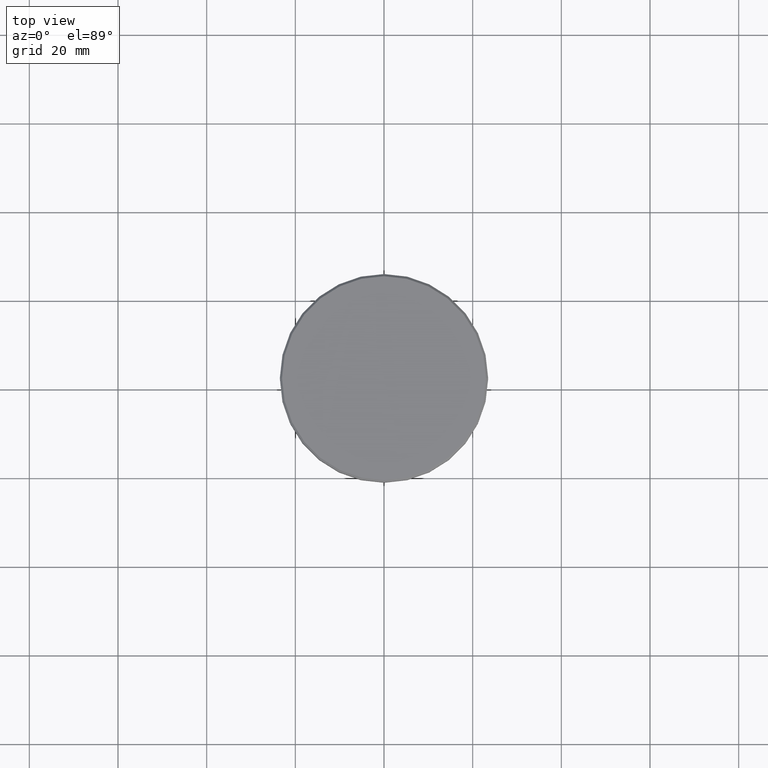
[diagram: clean part render]
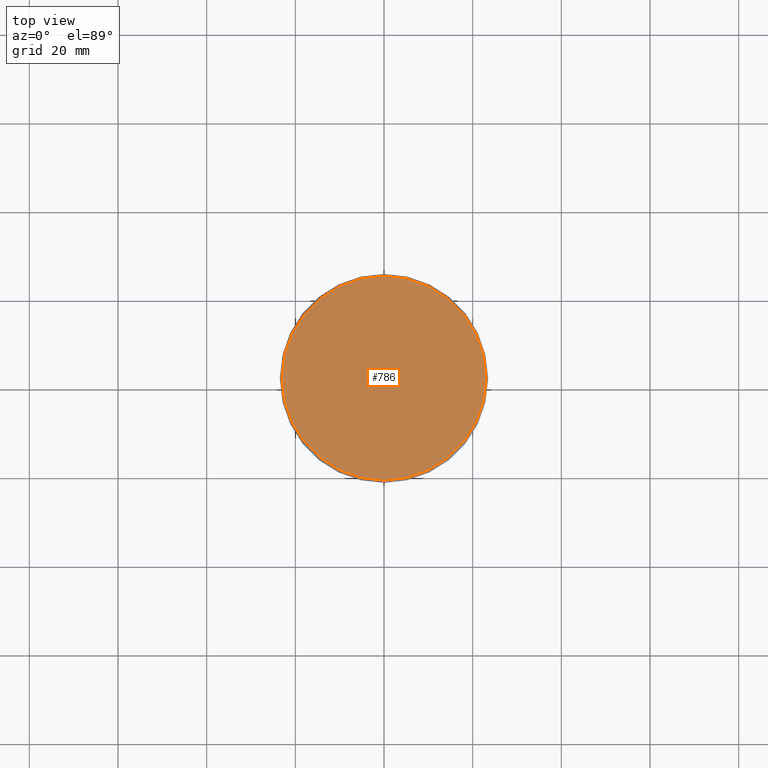
[diagram: same view with one face highlighted and labeled with its STEP entity id]
A machine part, top view. The second image highlights one B-rep face of the part: STEP entity #786.
In plain terms, the highlighted planar face has unit normal (0, -0, 1).
Its self-contained STEP definition (entity closure, byte-faithful):
#60 = DIRECTION ( 'NONE',  ( 0.000000000000000000, -0.000000000000000000, 1.000000000000000000 ) ) ;
#73 = DIRECTION ( 'NONE',  ( 1.000000000000000000, 0.000000000000000000, 0.000000000000000000 ) ) ;
#83 = AXIS2_PLACEMENT_3D ( 'NONE', #515, #60, #1147 ) ;
#143 = AXIS2_PLACEMENT_3D ( 'NONE', #608, #804, #638 ) ;
#185 = CARTESIAN_POINT ( 'NONE',  ( -22.99999999999999645, 0.000000000000000000, 0.000000000000000000 ) ) ;
#188 = ORIENTED_EDGE ( 'NONE', *, *, #678, .T. ) ;
#243 = PLANE ( 'NONE',  #83 ) ;
#332 = CIRCLE ( 'NONE', #795, 22.99999999999999645 ) ;
#515 = CARTESIAN_POINT ( 'NONE',  ( 0.000000000000000000, 0.000000000000000000, 0.000000000000000000 ) ) ;
#608 = CARTESIAN_POINT ( 'NONE',  ( 0.000000000000000000, 0.000000000000000000, 0.000000000000000000 ) ) ;
#636 = EDGE_LOOP ( 'NONE', ( #998, #188 ) ) ;
#638 = DIRECTION ( 'NONE',  ( 1.000000000000000000, 0.000000000000000000, 0.000000000000000000 ) ) ;
#640 = DIRECTION ( 'NONE',  ( -0.000000000000000000, -0.000000000000000000, 1.000000000000000000 ) ) ;
#655 = CIRCLE ( 'NONE', #143, 22.99999999999999645 ) ;
#678 = EDGE_CURVE ( 'NONE', #1172, #995, #332, .T. ) ;
#786 = ADVANCED_FACE ( 'NONE', ( #970 ), #243, .T. ) ;
#795 = AXIS2_PLACEMENT_3D ( 'NONE', #1181, #640, #73 ) ;
#804 = DIRECTION ( 'NONE',  ( -0.000000000000000000, -0.000000000000000000, 1.000000000000000000 ) ) ;
#970 = FACE_OUTER_BOUND ( 'NONE', #636, .T. ) ;
#995 = VERTEX_POINT ( 'NONE', #185 ) ;
#998 = ORIENTED_EDGE ( 'NONE', *, *, #1004, .T. ) ;
#1004 = EDGE_CURVE ( 'NONE', #995, #1172, #655, .T. ) ;
#1118 = CARTESIAN_POINT ( 'NONE',  ( 22.99999999999999645, 2.847303808017596139E-15, 0.000000000000000000 ) ) ;
#1147 = DIRECTION ( 'NONE',  ( 1.000000000000000000, 0.000000000000000000, 0.000000000000000000 ) ) ;
#1172 = VERTEX_POINT ( 'NONE', #1118 ) ;
#1181 = CARTESIAN_POINT ( 'NONE',  ( 0.000000000000000000, 0.000000000000000000, 0.000000000000000000 ) ) ;